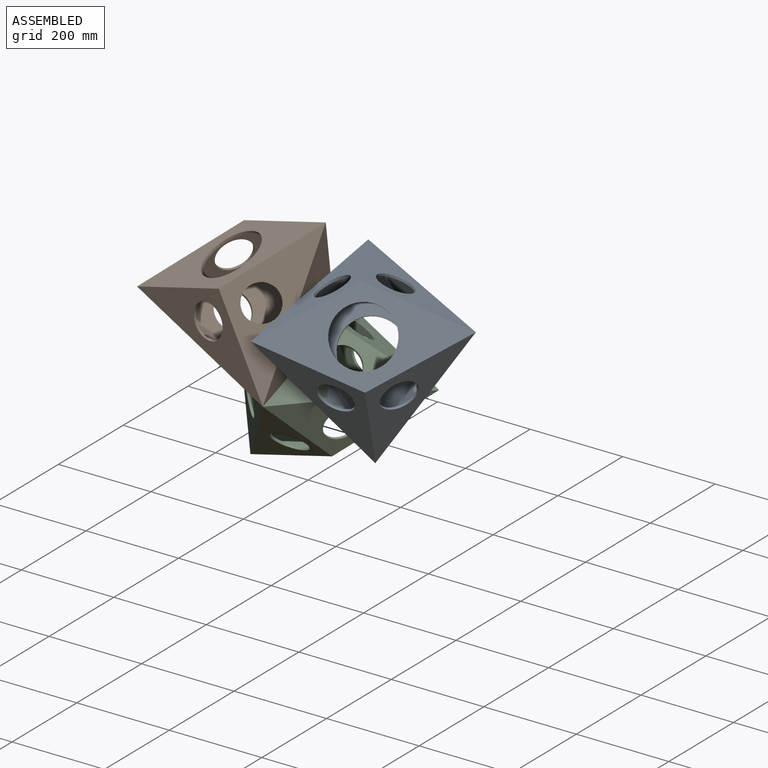
[diagram: assembled view]
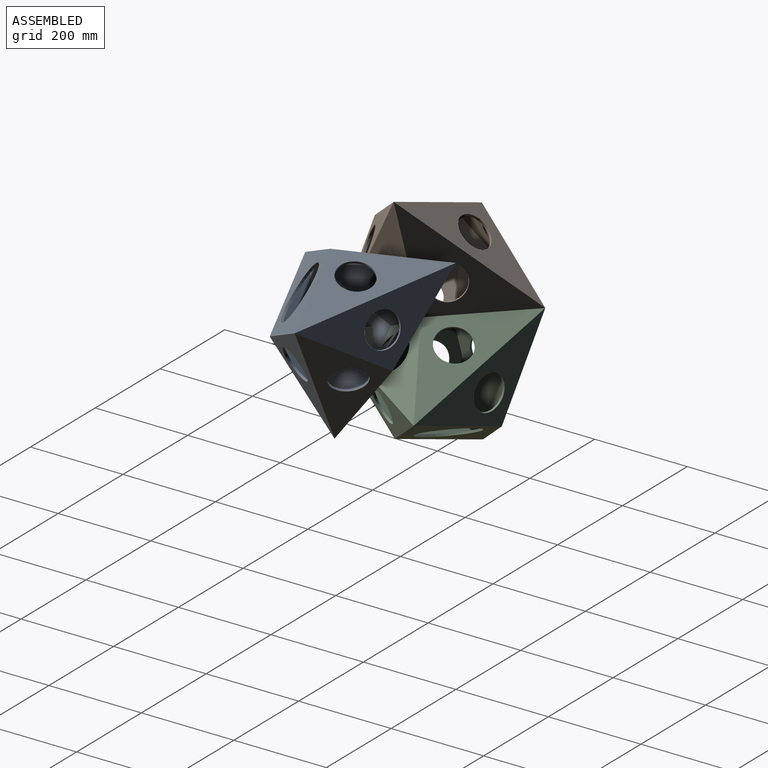
[diagram: assembled view, second angle]
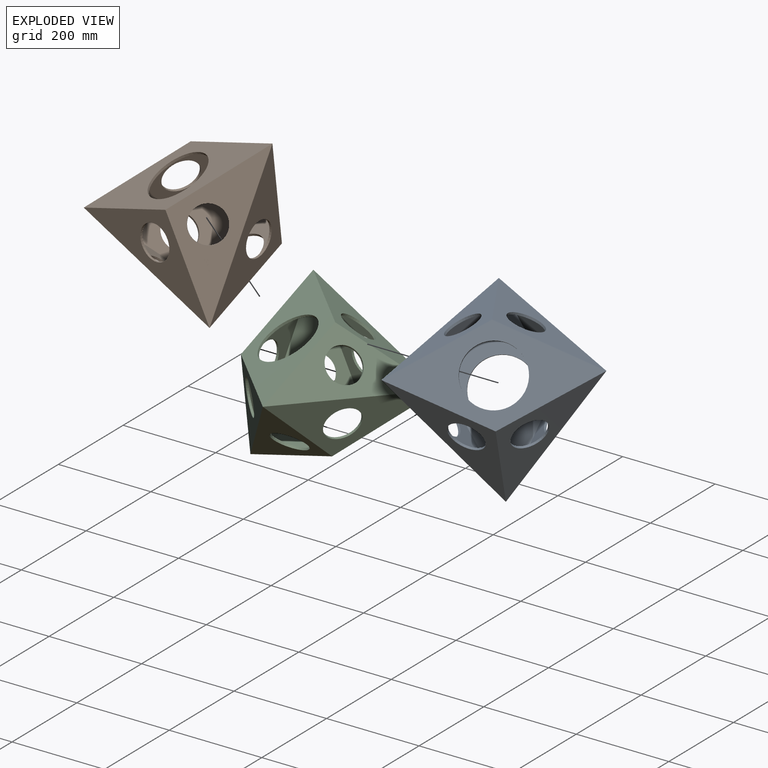
[diagram: exploded view]
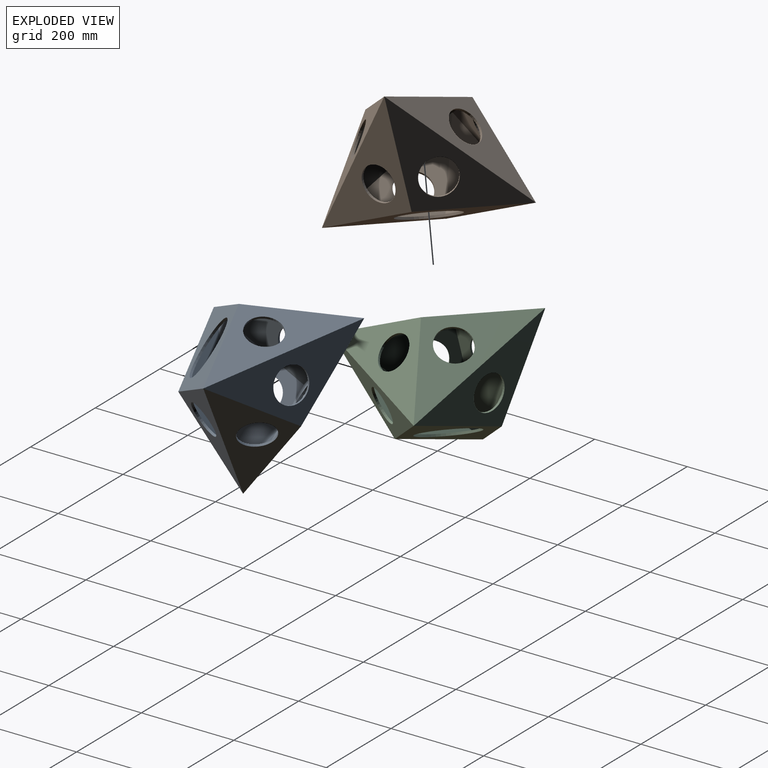
[diagram: exploded view, second angle]
ASSEMBLY  parts=3 mates=2
PART A: 30 faces, bbox 400x200x400 mm
  f0: plane 382.75x192.75mm, normal (0,-1,0), area 24879.2mm2, adj f1,f2,f3,f4,f5,f6,f7,f9
  f1: plane 190.92x190.46mm, normal (0.82,-0.41,0.41), area 17902.3mm2, adj f0,f2,f7,f8,f26
  f2: plane 190.92x190.46mm, normal (0.41,0.41,0.82), area 17902.3mm2, adj f0,f1,f3,f8,f27
  f3: plane 190.92x190.46mm, normal (-0.41,0.41,0.82), area 17902.3mm2, adj f0,f2,f4,f8,f28
  f4: plane 190.92x190.46mm, normal (-0.82,-0.41,0.41), area 17902.3mm2, adj f0,f3,f8,f9,f29
  f5: plane 190.92x190.46mm, normal (-0.41,0.41,-0.82), area 17902.3mm2, adj f0,f6,f8,f9,f23
  f6: plane 190.92x190.46mm, normal (0.41,0.41,-0.82), area 17902.3mm2, adj f0,f5,f7,f8,f22
  f7: plane 190.92x190.46mm, normal (0.82,-0.41,-0.41), area 17902.3mm2, adj f0,f1,f6,f8,f25
  f8: plane 382.75x192.75mm, normal (0,1,0), area 24879.2mm2, adj f1,f2,f3,f4,f5,f6,f7,f9
  f9: plane 190.92x190.46mm, normal (-0.82,-0.41,-0.41), area 17902.3mm2, adj f0,f4,f5,f8,f24
  f10: cylinder r=62.5mm len=125mm, axis (0,-1,0), area 1963.5mm2, adj f8,f20
  f11: cylinder r=62.5mm len=125mm, axis (0,-1,0), area 1963.5mm2, adj f0,f12
  f12: plane 400x200mm, normal (0,1,0), area 27728.2mm2, adj f11,f13,f16,f19,f21
  f13: plane 200x200mm, normal (-0.82,0.41,-0.41), area 20077mm2, adj f12,f14,f19,f26
  f14: plane 200x200mm, normal (-0.41,-0.41,-0.82), area 20077mm2, adj f13,f15,f20,f27
  f15: plane 200x200mm, normal (0.41,-0.41,-0.82), area 20077mm2, adj f14,f16,f20,f28
  f16: plane 200x200mm, normal (0.82,0.41,-0.41), area 20077mm2, adj f12,f15,f21,f29
  f17: plane 200x200mm, normal (0.41,-0.41,0.82), area 20077mm2, adj f18,f20,f21,f23
  f18: plane 200x200mm, normal (-0.41,-0.41,0.82), area 20077mm2, adj f17,f19,f20,f22
  f19: plane 200x200mm, normal (-0.82,0.41,0.41), area 20077mm2, adj f12,f13,f18,f25
  f20: plane 400x200mm, normal (0,-1,0), area 27728.2mm2, adj f10,f14,f15,f17,f18
  f21: plane 200x200mm, normal (0.82,0.41,0.41), area 20077mm2, adj f12,f16,f17,f24
  f22: cylinder r=37.5mm len=70.51mm, axis (-0.41,-0.41,0.82), area 1178.1mm2, adj f6,f18
  f23: cylinder r=37.5mm len=70.51mm, axis (0.41,-0.41,0.82), area 1178.1mm2, adj f5,f17
  f24: cylinder r=37.5mm len=70.51mm, axis (0.82,0.41,0.41), area 1178.1mm2, adj f9,f21
  f25: cylinder r=37.5mm len=70.51mm, axis (-0.82,0.41,0.41), area 1178.1mm2, adj f7,f19
  f26: cylinder r=37.5mm len=70.51mm, axis (-0.82,0.41,-0.41), area 1178.1mm2, adj f1,f13
  f27: cylinder r=37.5mm len=70.51mm, axis (-0.41,-0.41,-0.82), area 1178.1mm2, adj f2,f14
  f28: cylinder r=37.5mm len=70.51mm, axis (0.41,-0.41,-0.82), area 1178.1mm2, adj f3,f15
  f29: cylinder r=37.5mm len=70.51mm, axis (0.82,0.41,-0.41), area 1178.1mm2, adj f4,f16
PART B: same geometry as A
PART C: same geometry as A
PLACE A rot(axis=(-0.68,-0.28,0.68),44.8deg) t=(287.67,-112.82,116.54)mm
PLACE B rot(axis=(0.41,0.41,0.82),129.2deg) t=(44.08,-97.94,138.93)mm
PLACE C rot(axis=(0.95,-0.05,0.32),111.3deg) t=(116.16,-25.86,-33.15)mm
MATE fastened A.f25 <-> B.f22  axis (-1,0.04,0.07) through (166.16,-110.39,134.11)mm
MATE fastened B.f10 <-> C.f10  axis (0.36,0.36,-0.86) through (80.12,-61.9,52.89)mm
